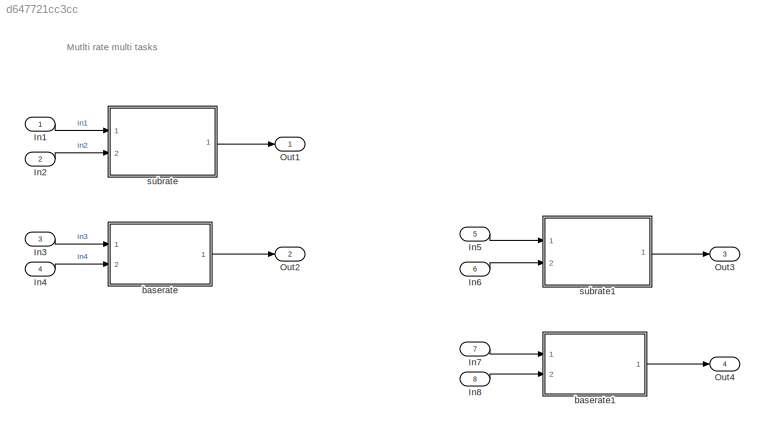
MODEL slx_d647721cc3cc
KIND model
BLOCK [Inport] In1
  IconDisplay = Port number
  OutDataTypeStr = FLOAT32
BLOCK [Inport] In2
  IconDisplay = Port number
  OutDataTypeStr = UINT16
  Port = 2
BLOCK [Inport] In3
  IconDisplay = Port number
  OutDataTypeStr = FLOAT32
  Port = 3
BLOCK [Inport] In4
  IconDisplay = Port number
  OutDataTypeStr = UINT16
  Port = 4
BLOCK [Inport] In5
  IconDisplay = Port number
  OutDataTypeStr = FLOAT32
  Port = 5
BLOCK [Inport] In6
  IconDisplay = Port number
  OutDataTypeStr = UINT16
  Port = 6
BLOCK [Inport] In7
  IconDisplay = Port number
  OutDataTypeStr = FLOAT32
  Port = 7
BLOCK [Inport] In8
  IconDisplay = Port number
  OutDataTypeStr = UINT16
  Port = 8
BLOCK [Outport] Out1
  IconDisplay = Port number
  OutDataTypeStr = boolean
BLOCK [Outport] Out2
  IconDisplay = Port number
  OutDataTypeStr = boolean
  Port = 2
BLOCK [Outport] Out3
  IconDisplay = Port number
  OutDataTypeStr = boolean
  Port = 3
BLOCK [Outport] Out4
  IconDisplay = Port number
  OutDataTypeStr = boolean
  Port = 4
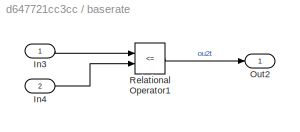
BLOCK [SubSystem] baserate
  FunctionWithSeparateData = off
  MaskHideContents = off
  MinAlgLoopOccurrences = off
  Opaque = off
  Ports = [2, 1]
  PropExecContextOutsideSubsystem = off
  RTWFcnNameOpts = Use subsystem name
  RTWSystemCode = Reusable function
  RequestExecContextInheritance = off
  TreatAsAtomicUnit = on
BLOCK [Inport] baserate/In3
  IconDisplay = Port number
  OutDataTypeStr = FLOAT32
BLOCK [Inport] baserate/In4
  IconDisplay = Port number
  OutDataTypeStr = UINT16
  Port = 2
BLOCK [Outport] baserate/Out2
  IconDisplay = Port number
  OutDataTypeStr = boolean
BLOCK [RelationalOperator] baserate/Relational Operator1
  InputSameDT = off
  Operator = <=
  OutDataTypeStr = boolean
  Ports = [2, 1]
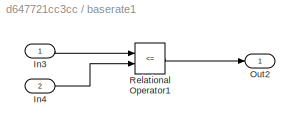
BLOCK [SubSystem] baserate1
  FunctionWithSeparateData = off
  MaskHideContents = off
  MinAlgLoopOccurrences = off
  Opaque = off
  Ports = [2, 1]
  PropExecContextOutsideSubsystem = off
  RTWFcnNameOpts = Use subsystem name
  RTWSystemCode = Reusable function
  RequestExecContextInheritance = off
  TreatAsAtomicUnit = on
BLOCK [Inport] baserate1/In3
  IconDisplay = Port number
  OutDataTypeStr = FLOAT32
BLOCK [Inport] baserate1/In4
  IconDisplay = Port number
  OutDataTypeStr = UINT16
  Port = 2
BLOCK [Outport] baserate1/Out2
  IconDisplay = Port number
  OutDataTypeStr = boolean
BLOCK [RelationalOperator] baserate1/Relational Operator1
  InputSameDT = off
  Operator = <=
  OutDataTypeStr = boolean
  Ports = [2, 1]
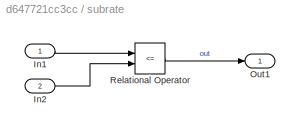
BLOCK [SubSystem] subrate
  FunctionWithSeparateData = off
  MaskHideContents = off
  MinAlgLoopOccurrences = off
  Opaque = off
  Ports = [2, 1]
  PropExecContextOutsideSubsystem = off
  RTWFcnNameOpts = Use subsystem name
  RTWSystemCode = Reusable function
  RequestExecContextInheritance = off
  SystemSampleTime = 0.6
  TreatAsAtomicUnit = on
BLOCK [Inport] subrate/In1
  IconDisplay = Port number
  OutDataTypeStr = FLOAT32
BLOCK [Inport] subrate/In2
  IconDisplay = Port number
  OutDataTypeStr = UINT16
  Port = 2
BLOCK [Outport] subrate/Out1
  IconDisplay = Port number
BLOCK [RelationalOperator] subrate/Relational Operator
  InputSameDT = off
  Operator = <=
  OutDataTypeStr = boolean
  Ports = [2, 1]
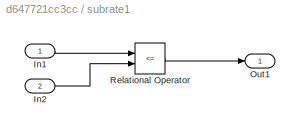
BLOCK [SubSystem] subrate1
  FunctionWithSeparateData = off
  MaskHideContents = off
  MinAlgLoopOccurrences = off
  Opaque = off
  Ports = [2, 1]
  PropExecContextOutsideSubsystem = off
  RTWFcnNameOpts = Use subsystem name
  RTWSystemCode = Reusable function
  RequestExecContextInheritance = off
  SystemSampleTime = 0.6
  TreatAsAtomicUnit = on
BLOCK [Inport] subrate1/In1
  IconDisplay = Port number
  OutDataTypeStr = FLOAT32
BLOCK [Inport] subrate1/In2
  IconDisplay = Port number
  OutDataTypeStr = UINT16
  Port = 2
BLOCK [Outport] subrate1/Out1
  IconDisplay = Port number
BLOCK [RelationalOperator] subrate1/Relational Operator
  InputSameDT = off
  Operator = <=
  OutDataTypeStr = boolean
  Ports = [2, 1]
ANNOTATION (root): Mutlti rate multi tasks
LINE In1:1 -> subrate:1
LINE In2:1 -> subrate:2
LINE In3:1 -> baserate:1
LINE In4:1 -> baserate:2
LINE In5:1 -> subrate1:1
LINE In6:1 -> subrate1:2
LINE In7:1 -> baserate1:1
LINE In8:1 -> baserate1:2
LINE baserate/In3:1 -> baserate/Relational Operator1:1
LINE baserate/In4:1 -> baserate/Relational Operator1:2
LINE baserate/Relational Operator1:1 -> baserate/Out2:1
LINE baserate1/In3:1 -> baserate1/Relational Operator1:1
LINE baserate1/In4:1 -> baserate1/Relational Operator1:2
LINE baserate1/Relational Operator1:1 -> baserate1/Out2:1
LINE baserate1:1 -> Out4:1
LINE baserate:1 -> Out2:1
LINE subrate/In1:1 -> subrate/Relational Operator:1
LINE subrate/In2:1 -> subrate/Relational Operator:2
LINE subrate/Relational Operator:1 -> subrate/Out1:1
LINE subrate1/In1:1 -> subrate1/Relational Operator:1
LINE subrate1/In2:1 -> subrate1/Relational Operator:2
LINE subrate1/Relational Operator:1 -> subrate1/Out1:1
LINE subrate1:1 -> Out3:1
LINE subrate:1 -> Out1:1
